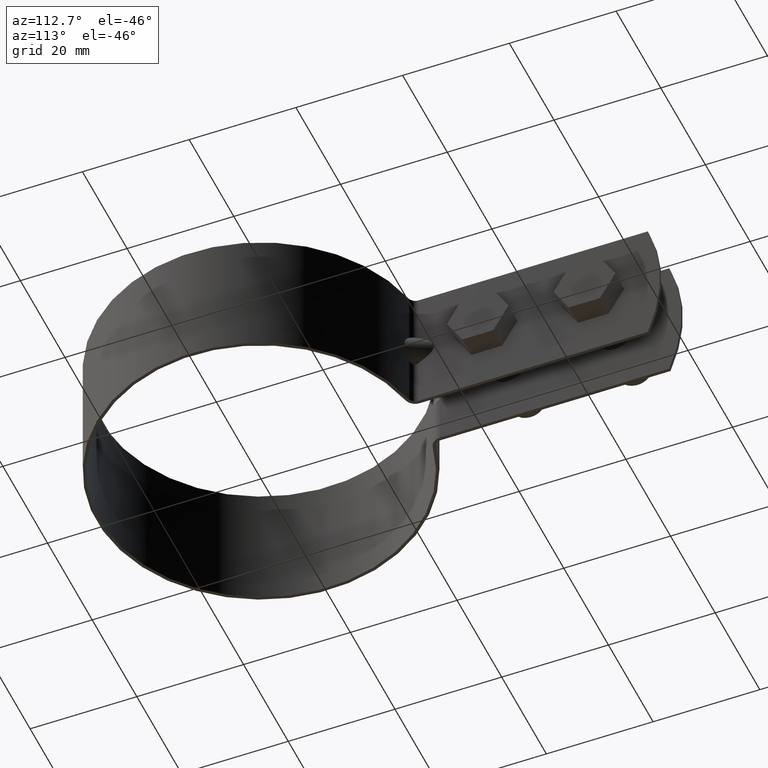
[diagram: clean part render]
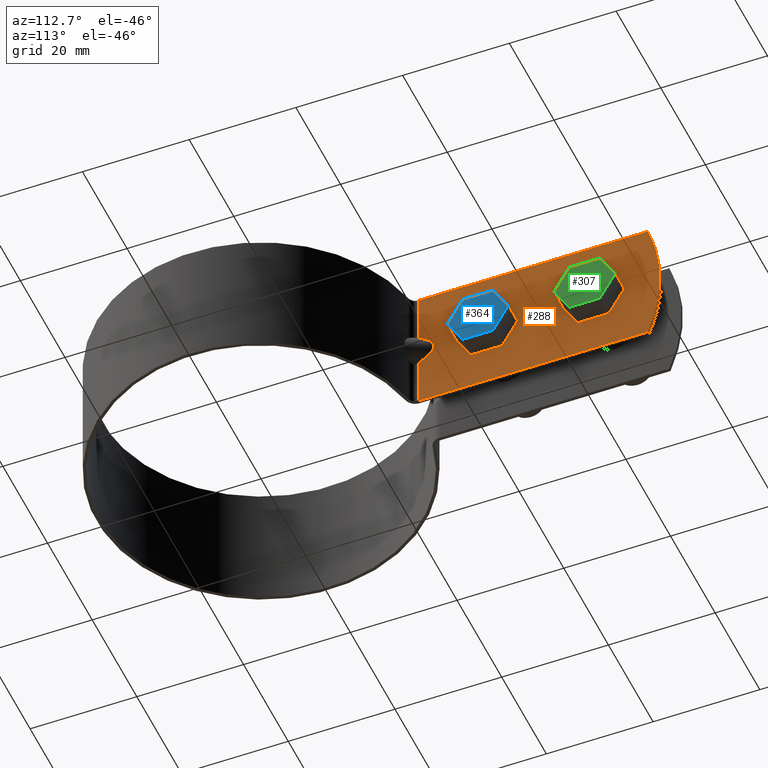
[diagram: same view with three faces highlighted in distinct colors, each labeled with its STEP entity id]
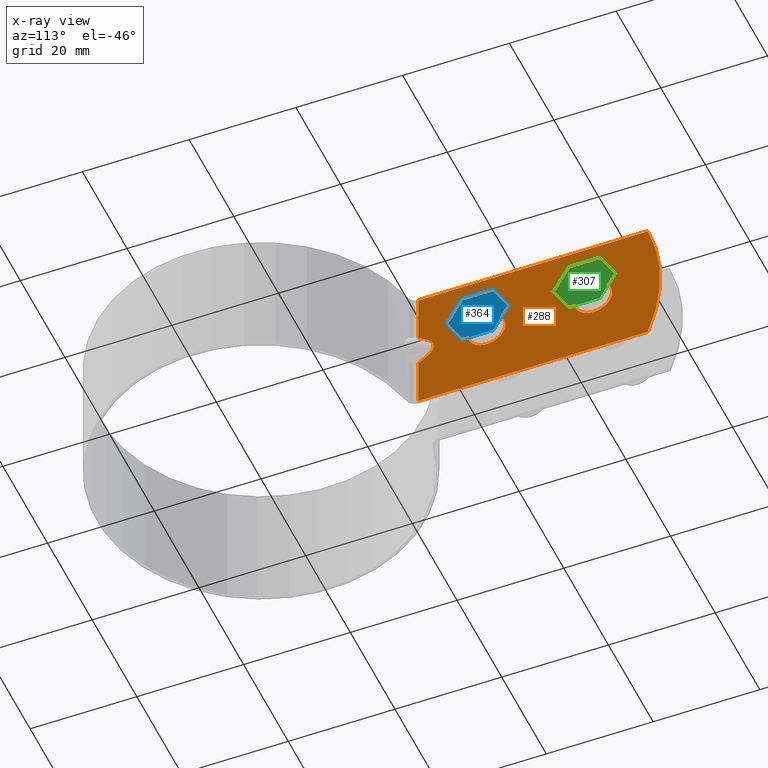
[diagram: x-ray of the same camera — body ghosted, the three highlighted faces saturated]
A machine part, auxiliary view with three faces highlighted in distinct colors.
The next image is the same camera in x-ray (body ghosted, the three faces saturated) — at least one of them is partly hidden behind the body in this view.
Their STEP definitions:

[orange] entity #288 — the highlighted planar face has unit normal (1, -0, 0).
#288 = ADVANCED_FACE( '', ( #418, #419, #420 ), #421, .T. );
#418 = FACE_OUTER_BOUND( '', #650, .T. );
#419 = FACE_BOUND( '', #651, .T. );
#420 = FACE_BOUND( '', #652, .T. );
#421 = PLANE( '', #653 );
#650 = EDGE_LOOP( '', ( #995, #996, #997, #998, #999, #1000, #1001, #1002 ) );
#651 = EDGE_LOOP( '', ( #1003 ) );
#652 = EDGE_LOOP( '', ( #1004 ) );
#653 = AXIS2_PLACEMENT_3D( '', #1005, #1006, #1007 );
#995 = ORIENTED_EDGE( '', *, *, #1646, .F. );
#996 = ORIENTED_EDGE( '', *, *, #1690, .F. );
#997 = ORIENTED_EDGE( '', *, *, #1691, .F. );
#998 = ORIENTED_EDGE( '', *, *, #1692, .F. );
#999 = ORIENTED_EDGE( '', *, *, #1621, .T. );
#1000 = ORIENTED_EDGE( '', *, *, #1685, .T. );
#1001 = ORIENTED_EDGE( '', *, *, #1693, .F. );
#1002 = ORIENTED_EDGE( '', *, *, #1632, .F. );
#1003 = ORIENTED_EDGE( '', *, *, #1679, .T. );
#1004 = ORIENTED_EDGE( '', *, *, #1675, .T. );
#1005 = CARTESIAN_POINT( '', ( 5.10000000000000, 31.5881702540682, -12.5000000000000 ) );
#1006 = DIRECTION( '', ( 1.00000000000000, -6.06692130572647E-017, 0.000000000000000 ) );
#1007 = DIRECTION( '', ( 6.06692130572647E-017, 1.00000000000000, 0.000000000000000 ) );
#1621 = EDGE_CURVE( '', #1865, #1862, #1866, .T. );
#1632 = EDGE_CURVE( '', #1883, #1886, #1887, .T. );
#1646 = EDGE_CURVE( '', #1909, #1883, #1911, .T. );
#1675 = EDGE_CURVE( '', #1960, #1960, #1961, .F. );
#1679 = EDGE_CURVE( '', #1968, #1968, #1969, .F. );
#1685 = EDGE_CURVE( '', #1862, #1978, #1980, .T. );
#1690 = EDGE_CURVE( '', #1986, #1909, #1987, .T. );
#1691 = EDGE_CURVE( '', #1988, #1986, #1989, .T. );
#1692 = EDGE_CURVE( '', #1865, #1988, #1990, .T. );
#1693 = EDGE_CURVE( '', #1886, #1978, #1991, .T. );
#1862 = VERTEX_POINT( '', #2264 );
#1865 = VERTEX_POINT( '', #2268 );
#1866 = LINE( '', #2269, #2270 );
#1883 = VERTEX_POINT( '', #2291 );
#1886 = VERTEX_POINT( '', #2294 );
#1887 = LINE( '', #2295, #2296 );
#1909 = VERTEX_POINT( '', #2352 );
#1911 = LINE( '', #2355, #2356 );
#1960 = VERTEX_POINT( '', #2443 );
#1961 = CIRCLE( '', #2444, 3.50000000000000 );
#1968 = VERTEX_POINT( '', #2451 );
#1969 = CIRCLE( '', #2452, 3.50000000000000 );
#1978 = VERTEX_POINT( '', #2462 );
#1980 = CIRCLE( '', #2465, 35.0000000000000 );
#1986 = VERTEX_POINT( '', #2474 );
#1987 = ELLIPSE( '', #2475, 8.81075705834105, 4.00000000000000 );
#1988 = VERTEX_POINT( '', #2476 );
#1989 = LINE( '', #2477, #2478 );
#1990 = LINE( '', #2479, #2480 );
#1991 = LINE( '', #2481, #2482 );
#2264 = CARTESIAN_POINT( '', ( 5.10000000000001, 74.6051587988220, -12.5000000000000 ) );
#2268 = CARTESIAN_POINT( '', ( 5.10000000000000, 31.5881702540682, -12.5000000000000 ) );
#2269 = CARTESIAN_POINT( '', ( 5.10000000000000, 31.5881702540682, -12.5000000000000 ) );
#2270 = VECTOR( '', #2955, 1000.00000000000 );
#2291 = CARTESIAN_POINT( '', ( 5.10000000000000, 31.5881702540682, 3.14917188449845 ) );
#2294 = CARTESIAN_POINT( '', ( 5.10000000000000, 31.5881702540682, 12.5000000000000 ) );
#2295 = CARTESIAN_POINT( '', ( 5.10000000000000, 31.5881702540682, -12.5000000000000 ) );
#2296 = VECTOR( '', #2978, 1000.00000000000 );
#2352 = CARTESIAN_POINT( '', ( 5.10000000000000, 32.9066641765126, 2.29430574540416 ) );
#2355 = CARTESIAN_POINT( '', ( 5.10000000000000, 38.7316104092756, -1.48238917269037 ) );
#2356 = VECTOR( '', #3002, 1000.00000000000 );
#2443 = CARTESIAN_POINT( '', ( 5.10000000000001, 47.9134167222669, -8.67361737988404E-016 ) );
#2444 = AXIS2_PLACEMENT_3D( '', #3057, #3058, #3059 );
#2451 = CARTESIAN_POINT( '', ( 5.10000000000001, 67.9134167222669, -8.67361737988404E-016 ) );
#2452 = AXIS2_PLACEMENT_3D( '', #3069, #3070, #3071 );
#2462 = CARTESIAN_POINT( '', ( 5.10000000000001, 74.6051587988220, 12.5000000000000 ) );
#2465 = AXIS2_PLACEMENT_3D( '', #3083, #3084, #3085 );
#2474 = CARTESIAN_POINT( '', ( 5.10000000000000, 32.9066641765126, -2.29430574540419 ) );
#2475 = AXIS2_PLACEMENT_3D( '', #3092, #3093, #3094 );
#2476 = CARTESIAN_POINT( '', ( 5.10000000000000, 31.5881702540682, -3.14917188449851 ) );
#2477 = CARTESIAN_POINT( '', ( 5.10000000000000, 27.3197603000001, -5.91666218186840 ) );
#2478 = VECTOR( '', #3095, 1000.00000000000 );
#2479 = CARTESIAN_POINT( '', ( 5.10000000000000, 31.5881702540682, -12.5000000000000 ) );
#2480 = VECTOR( '', #3096, 1000.00000000000 );
#2481 = CARTESIAN_POINT( '', ( 5.10000000000000, 31.5881702540682, 12.5000000000000 ) );
#2482 = VECTOR( '', #3097, 1000.00000000000 );
#2955 = DIRECTION( '', ( 6.06692130572647E-017, 1.00000000000000, 0.000000000000000 ) );
#2978 = DIRECTION( '', ( 0.000000000000000, 0.000000000000000, 1.00000000000000 ) );
#3002 = DIRECTION( '', ( -5.09056978337516E-017, -0.839069690679893, 0.544023946331730 ) );
#3057 = CARTESIAN_POINT( '', ( 5.10000000000001, 44.4134167222669, -8.67361737988404E-016 ) );
#3058 = DIRECTION( '', ( 1.00000000000000, -6.06692130572647E-017, 0.000000000000000 ) );
#3059 = DIRECTION( '', ( 6.06692130572647E-017, 1.00000000000000, 0.000000000000000 ) );
#3069 = CARTESIAN_POINT( '', ( 5.10000000000001, 64.4134167222669, -8.67361737988404E-016 ) );
#3070 = DIRECTION( '', ( 1.00000000000000, -6.06692130572647E-017, 0.000000000000000 ) );
#3071 = DIRECTION( '', ( 6.06692130572647E-017, 1.00000000000000, 0.000000000000000 ) );
#3083 = CARTESIAN_POINT( '', ( 5.10000000000001, 41.9134167222669, -2.81560963374271E-031 ) );
#3084 = DIRECTION( '', ( 1.00000000000000, -6.06692130572647E-017, 0.000000000000000 ) );
#3085 = DIRECTION( '', ( 6.06692130572647E-017, 1.00000000000000, 0.000000000000000 ) );
#3092 = CARTESIAN_POINT( '', ( 5.10000000000000, 25.6893145204389, -3.16179055564012E-014 ) );
#3093 = DIRECTION( '', ( 1.00000000000000, -6.06692130572647E-017, 1.98805059407214E-047 ) );
#3094 = DIRECTION( '', ( 6.06692130572647E-017, 1.00000000000000, 9.96825944130074E-016 ) );
#3095 = DIRECTION( '', ( 8.05405233250115E-017, 0.839069690679892, 0.544023946331730 ) );
#3096 = DIRECTION( '', ( 0.000000000000000, 0.000000000000000, 1.00000000000000 ) );
#3097 = DIRECTION( '', ( 6.06692130572647E-017, 1.00000000000000, 0.000000000000000 ) );

[blue] entity #364 — the highlighted planar face has unit normal (-1, 0, 0).
#364 = ADVANCED_FACE( '', ( #592 ), #593, .F. );
#592 = FACE_OUTER_BOUND( '', #824, .T. );
#593 = PLANE( '', #825 );
#824 = EDGE_LOOP( '', ( #1579, #1580, #1581, #1582, #1583, #1584 ) );
#825 = AXIS2_PLACEMENT_3D( '', #1585, #1586, #1587 );
#1579 = ORIENTED_EDGE( '', *, *, #1841, .T. );
#1580 = ORIENTED_EDGE( '', *, *, #1844, .T. );
#1581 = ORIENTED_EDGE( '', *, *, #1847, .T. );
#1582 = ORIENTED_EDGE( '', *, *, #1848, .T. );
#1583 = ORIENTED_EDGE( '', *, *, #1849, .T. );
#1584 = ORIENTED_EDGE( '', *, *, #1850, .T. );
#1585 = CARTESIAN_POINT( '', ( 9.10000000000001, 35.7531626844225, -5.00000000000000 ) );
#1586 = DIRECTION( '', ( -1.00000000000000, 6.06692130572647E-017, 0.000000000000000 ) );
#1587 = DIRECTION( '', ( 0.000000000000000, 0.000000000000000, 1.00000000000000 ) );
#1841 = EDGE_CURVE( '', #2234, #2232, #2235, .T. );
#1844 = EDGE_CURVE( '', #2232, #2237, #2239, .T. );
#1847 = EDGE_CURVE( '', #2237, #2244, #2245, .T. );
#1848 = EDGE_CURVE( '', #2244, #2246, #2247, .T. );
#1849 = EDGE_CURVE( '', #2246, #2248, #2249, .T. );
#1850 = EDGE_CURVE( '', #2248, #2234, #2250, .T. );
#2232 = VERTEX_POINT( '', #2912 );
#2234 = VERTEX_POINT( '', #2915 );
#2235 = LINE( '', #2916, #2917 );
#2237 = VERTEX_POINT( '', #2920 );
#2239 = LINE( '', #2923, #2924 );
#2244 = VERTEX_POINT( '', #2929 );
#2245 = LINE( '', #2930, #2931 );
#2246 = VERTEX_POINT( '', #2932 );
#2247 = LINE( '', #2933, #2934 );
#2248 = VERTEX_POINT( '', #2935 );
#2249 = LINE( '', #2936, #2937 );
#2250 = LINE( '', #2938, #2939 );
#2912 = CARTESIAN_POINT( '', ( 9.10000000000001, 47.3001680682151, -5.00000000000000 ) );
#2915 = CARTESIAN_POINT( '', ( 9.10000000000001, 41.5266653763188, -5.00000000000000 ) );
#2916 = CARTESIAN_POINT( '', ( 9.10000000000001, 41.5266653763188, -5.00000000000000 ) );
#2917 = VECTOR( '', #3327, 1000.00000000000 );
#2920 = CARTESIAN_POINT( '', ( 9.10000000000001, 50.1869194141632, -8.67361737988404E-016 ) );
#2923 = CARTESIAN_POINT( '', ( 9.10000000000001, 47.3001680682151, -5.00000000000000 ) );
#2924 = VECTOR( '', #3330, 1000.00000000000 );
#2929 = CARTESIAN_POINT( '', ( 9.10000000000001, 47.3001680682151, 5.00000000000000 ) );
#2930 = CARTESIAN_POINT( '', ( 9.10000000000001, 50.1869194141632, -1.22087514200374E-015 ) );
#2931 = VECTOR( '', #3337, 1000.00000000000 );
#2932 = CARTESIAN_POINT( '', ( 9.10000000000001, 41.5266653763188, 5.00000000000000 ) );
#2933 = CARTESIAN_POINT( '', ( 9.10000000000001, 47.3001680682151, 5.00000000000000 ) );
#2934 = VECTOR( '', #3338, 1000.00000000000 );
#2935 = CARTESIAN_POINT( '', ( 9.10000000000001, 38.6399140303707, -8.67361737988404E-016 ) );
#2936 = CARTESIAN_POINT( '', ( 9.10000000000001, 41.5266653763188, 5.00000000000000 ) );
#2937 = VECTOR( '', #3339, 1000.00000000000 );
#2938 = CARTESIAN_POINT( '', ( 9.10000000000001, 38.6399140303707, 1.93178474057610E-016 ) );
#2939 = VECTOR( '', #3340, 1000.00000000000 );
#3327 = DIRECTION( '', ( 6.06692130572647E-017, 1.00000000000000, -3.00462919747432E-016 ) );
#3330 = DIRECTION( '', ( 3.03346065286324E-017, 0.500000000000000, 0.866025403784439 ) );
#3337 = DIRECTION( '', ( -3.03346065286324E-017, -0.500000000000000, 0.866025403784439 ) );
#3338 = DIRECTION( '', ( -6.06692130572647E-017, -1.00000000000000, 0.000000000000000 ) );
#3339 = DIRECTION( '', ( -3.03346065286324E-017, -0.500000000000000, -0.866025403784439 ) );
#3340 = DIRECTION( '', ( 3.03346065286324E-017, 0.500000000000000, -0.866025403784439 ) );

[green] entity #307 — the highlighted planar face has unit normal (-1, 0, 0).
#307 = ADVANCED_FACE( '', ( #465 ), #466, .F. );
#465 = FACE_OUTER_BOUND( '', #697, .T. );
#466 = PLANE( '', #698 );
#697 = EDGE_LOOP( '', ( #1158, #1159, #1160, #1161, #1162, #1163 ) );
#698 = AXIS2_PLACEMENT_3D( '', #1164, #1165, #1166 );
#1158 = ORIENTED_EDGE( '', *, *, #1716, .T. );
#1159 = ORIENTED_EDGE( '', *, *, #1719, .T. );
#1160 = ORIENTED_EDGE( '', *, *, #1722, .T. );
#1161 = ORIENTED_EDGE( '', *, *, #1723, .T. );
#1162 = ORIENTED_EDGE( '', *, *, #1724, .T. );
#1163 = ORIENTED_EDGE( '', *, *, #1725, .T. );
#1164 = CARTESIAN_POINT( '', ( 9.10000000000001, 55.7531626844225, -5.00000000000000 ) );
#1165 = DIRECTION( '', ( -1.00000000000000, 6.06692130572647E-017, 0.000000000000000 ) );
#1166 = DIRECTION( '', ( 0.000000000000000, 0.000000000000000, 1.00000000000000 ) );
#1716 = EDGE_CURVE( '', #2026, #2024, #2027, .T. );
#1719 = EDGE_CURVE( '', #2024, #2029, #2031, .T. );
#1722 = EDGE_CURVE( '', #2029, #2036, #2037, .T. );
#1723 = EDGE_CURVE( '', #2036, #2038, #2039, .T. );
#1724 = EDGE_CURVE( '', #2038, #2040, #2041, .T. );
#1725 = EDGE_CURVE( '', #2040, #2026, #2042, .T. );
#2024 = VERTEX_POINT( '', #2530 );
#2026 = VERTEX_POINT( '', #2533 );
#2027 = LINE( '', #2534, #2535 );
#2029 = VERTEX_POINT( '', #2538 );
#2031 = LINE( '', #2541, #2542 );
#2036 = VERTEX_POINT( '', #2547 );
#2037 = LINE( '', #2548, #2549 );
#2038 = VERTEX_POINT( '', #2550 );
#2039 = LINE( '', #2551, #2552 );
#2040 = VERTEX_POINT( '', #2553 );
#2041 = LINE( '', #2554, #2555 );
#2042 = LINE( '', #2556, #2557 );
#2530 = CARTESIAN_POINT( '', ( 9.10000000000001, 67.3001680682151, -5.00000000000000 ) );
#2533 = CARTESIAN_POINT( '', ( 9.10000000000001, 61.5266653763188, -5.00000000000000 ) );
#2534 = CARTESIAN_POINT( '', ( 9.10000000000001, 61.5266653763188, -5.00000000000000 ) );
#2535 = VECTOR( '', #3132, 1000.00000000000 );
#2538 = CARTESIAN_POINT( '', ( 9.10000000000001, 70.1869194141632, -8.67361737988404E-016 ) );
#2541 = CARTESIAN_POINT( '', ( 9.10000000000001, 67.3001680682151, -5.00000000000000 ) );
#2542 = VECTOR( '', #3135, 1000.00000000000 );
#2547 = CARTESIAN_POINT( '', ( 9.10000000000001, 67.3001680682151, 5.00000000000000 ) );
#2548 = CARTESIAN_POINT( '', ( 9.10000000000001, 70.1869194141632, -1.22087514200374E-015 ) );
#2549 = VECTOR( '', #3142, 1000.00000000000 );
#2550 = CARTESIAN_POINT( '', ( 9.10000000000001, 61.5266653763188, 5.00000000000000 ) );
#2551 = CARTESIAN_POINT( '', ( 9.10000000000001, 67.3001680682151, 5.00000000000000 ) );
#2552 = VECTOR( '', #3143, 1000.00000000000 );
#2553 = CARTESIAN_POINT( '', ( 9.10000000000001, 58.6399140303707, -8.67361737988404E-016 ) );
#2554 = CARTESIAN_POINT( '', ( 9.10000000000001, 61.5266653763188, 5.00000000000000 ) );
#2555 = VECTOR( '', #3144, 1000.00000000000 );
#2556 = CARTESIAN_POINT( '', ( 9.10000000000001, 58.6399140303707, 1.93178474057610E-016 ) );
#2557 = VECTOR( '', #3145, 1000.00000000000 );
#3132 = DIRECTION( '', ( 6.06692130572647E-017, 1.00000000000000, -3.00462919747432E-016 ) );
#3135 = DIRECTION( '', ( 3.03346065286324E-017, 0.500000000000000, 0.866025403784439 ) );
#3142 = DIRECTION( '', ( -3.03346065286324E-017, -0.500000000000000, 0.866025403784439 ) );
#3143 = DIRECTION( '', ( -6.06692130572647E-017, -1.00000000000000, 0.000000000000000 ) );
#3144 = DIRECTION( '', ( -3.03346065286324E-017, -0.500000000000000, -0.866025403784439 ) );
#3145 = DIRECTION( '', ( 3.03346065286324E-017, 0.500000000000000, -0.866025403784439 ) );